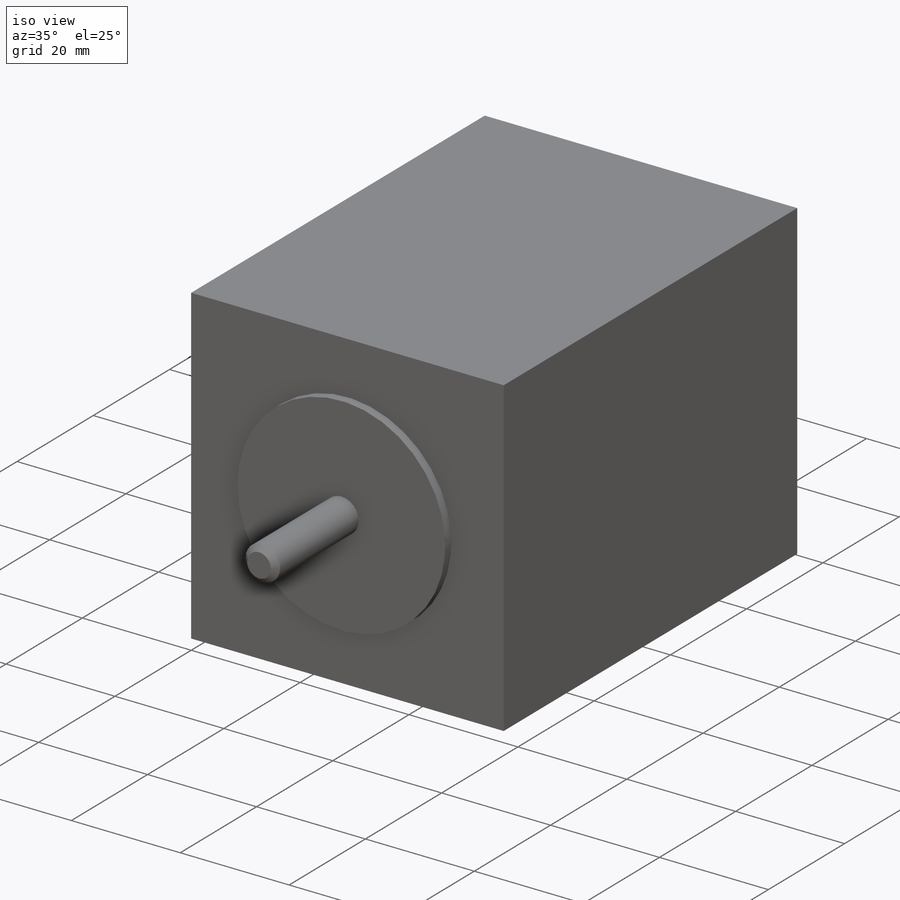
[diagram: iso view]
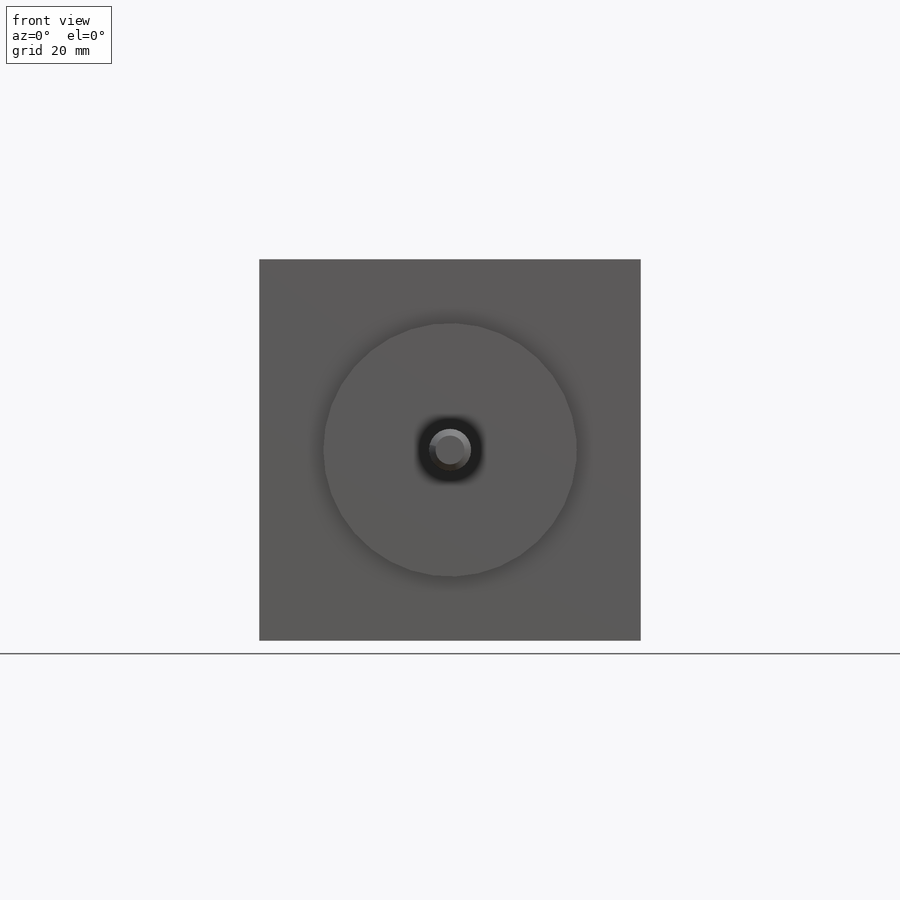
[diagram: front view]
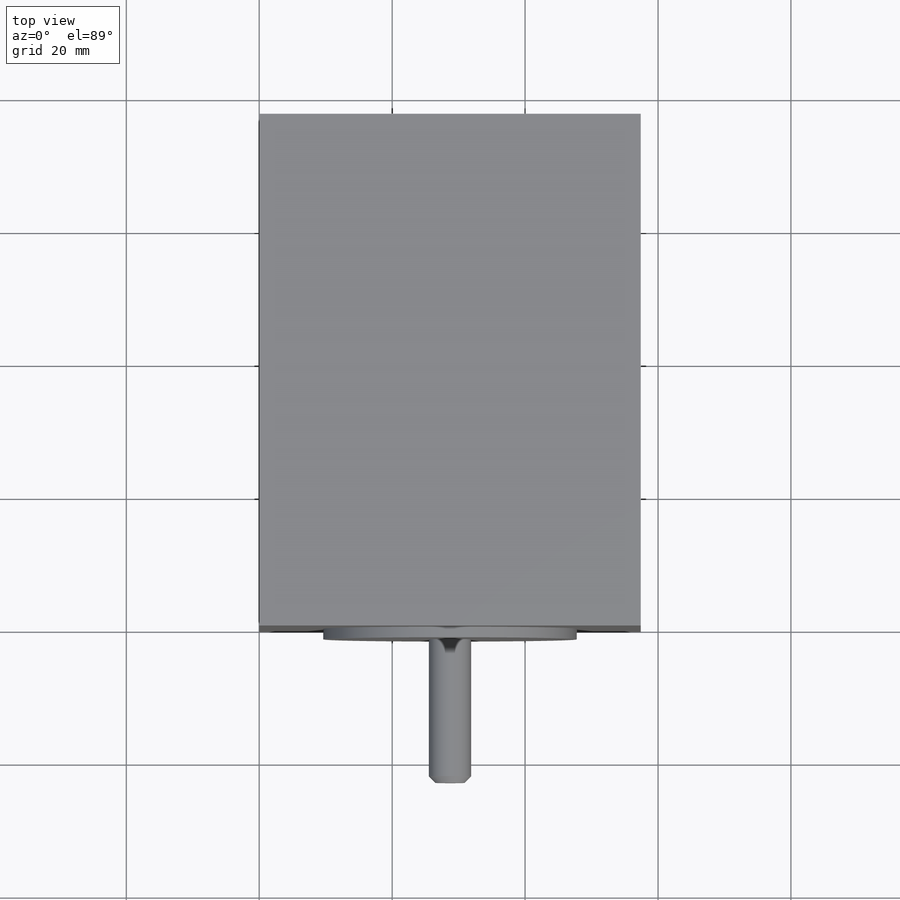
[diagram: top view]
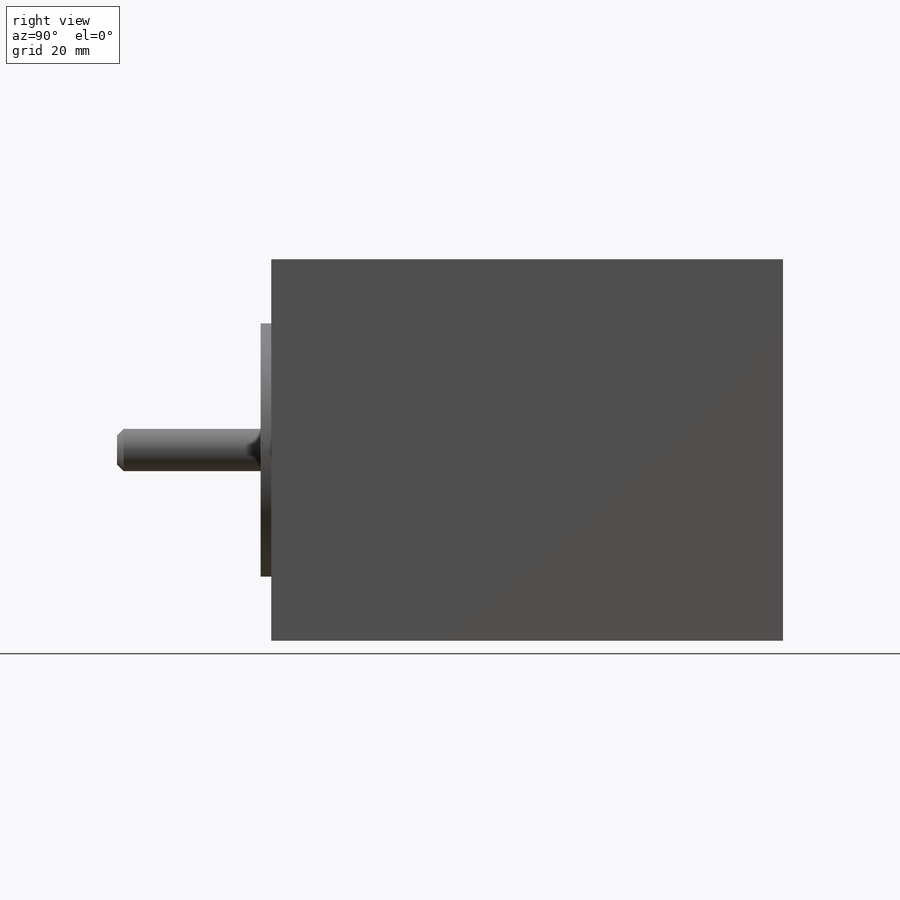
[diagram: right view]
SOLIDWORKS PART (.sldprt)
format: sldprt  version: not decoded by parser v0  size: 161,280 bytes
history: native  units: mm
features: plane x3, sketch x3, extrude x3, material x1, chamfer x1 (+9 scaffold rows collapsed)
feature tree (20):
  scaffold x9  (default folders/planes/origin — collapsed)
  material  "Material <nicht festgelegt>"
  plane  "Ebene vorne"
  plane  "Ebene oben"
  plane  "Ebene rechts"
  sketch  "Skizze1"  dims[D1=57.4mm D2=57.4mm]
  extrude  "Aufsatz-Linear austragen1"  Depth=77mm
  sketch  "Skizze2"  dims[c1.D1=38.13mm c1.D2=28.7mm c1.D3=~43.279296mm c2.D3=90.0deg c3.D3=28.7mm]
  extrude  "Aufsatz-Linear austragen2"  Depth=1.6mm
  sketch  "Skizze3"  dims[c1.D3=6.35mm c1.D1=28.7mm c1.D2=~40.601794mm c2.D1=28.7mm c2.D2=28.7mm]
  extrude  "Aufsatz-Linear austragen3"  Depth=21.6mm
  chamfer  "Fase1"  Distance=1mm Angle=45deg
decode coverage: 7 of 7 modeling features carry decoded parameters
note: ~ marks probable driven/reference dimensions
note: suppression state not decoded; provenance and decode notes live in map.json
